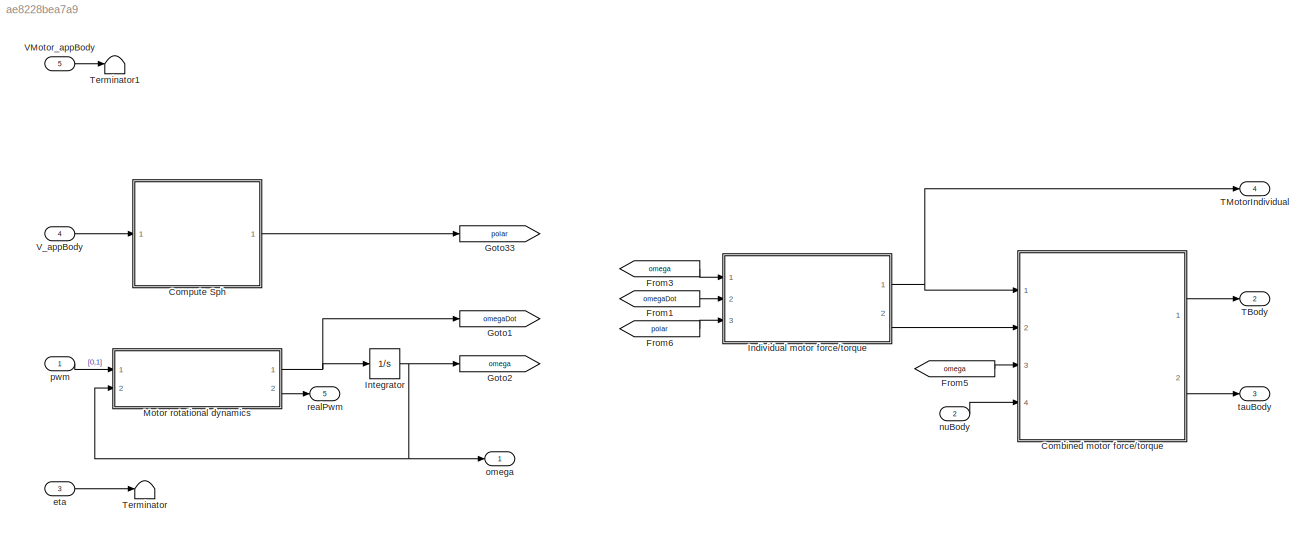
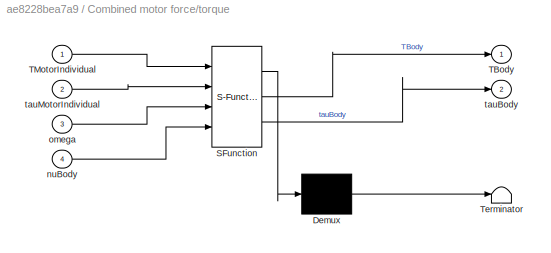
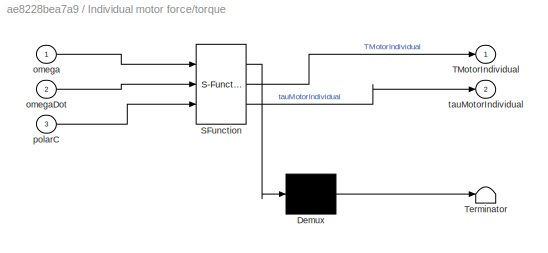
MODEL slx_ae8228bea7a9
KIND model
CONFIG AbsTol = auto
CONFIG EnableMultiTasking = on
CONFIG FixedStep = auto
CONFIG MaxStep = auto
CONFIG MinStep = auto
CONFIG RelTol = 1e-3
CONFIG SampleTimeConstraint = Unconstrained
CONFIG SolverName = VariableStepAuto
CONFIG StartTime = 0.0
CONFIG StopTime = 10.0
BLOCK [SubSystem] Combined motor force//torque
  ErrorFcn = Stateflow.Translate.translate
  PermitHierarchicalResolution = ExplicitOnly
  Ports = [4, 2]
  RequestExecContextInheritance = off
  SFBlockType = MATLAB Function
  TreatAsAtomicUnit = on
BLOCK [Demux] Combined motor force//torque/ Demux 
  Outputs = 1
  Ports = [1, 1]
BLOCK [S-Function] Combined motor force//torque/ SFunction 
  EnableBusSupport = on
  FunctionName = sf_sfun
  Parameters = Motor,Uav
  PortCounts = [4 3]
  Ports = [4, 3]
  SFcnIsStateOwnerBlock = off
  SFunctionDeploymentMode = off
  Tag = Stateflow S-Function 18
BLOCK [Terminator] Combined motor force//torque/ Terminator 
BLOCK [Outport] Combined motor force//torque/TBody
  VectorParamsAs1DForOutWhenUnconnected = off
BLOCK [Inport] Combined motor force//torque/TMotorIndividual
BLOCK [Inport] Combined motor force//torque/nuBody
  Port = 4
BLOCK [Inport] Combined motor force//torque/omega
  Port = 3
BLOCK [Outport] Combined motor force//torque/tauBody
  Port = 2
  VectorParamsAs1DForOutWhenUnconnected = off
BLOCK [Inport] Combined motor force//torque/tauMotorIndividual
  Port = 2
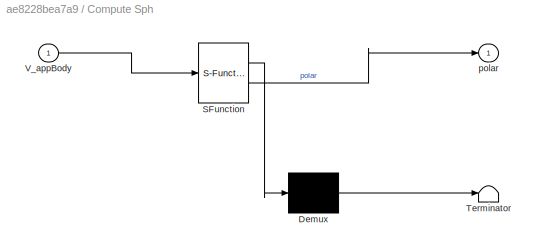
BLOCK [SubSystem] Compute Sph
  ErrorFcn = Stateflow.Translate.translate
  PermitHierarchicalResolution = ExplicitOnly
  Ports = [1, 1]
  RequestExecContextInheritance = off
  SFBlockType = MATLAB Function
  TreatAsAtomicUnit = on
BLOCK [Demux] Compute Sph/ Demux 
  Outputs = 1
  Ports = [1, 1]
BLOCK [S-Function] Compute Sph/ SFunction 
  EnableBusSupport = on
  FunctionName = sf_sfun
  PortCounts = [1 2]
  Ports = [1, 2]
  SFcnIsStateOwnerBlock = off
  SFunctionDeploymentMode = off
  Tag = Stateflow S-Function 1
BLOCK [Terminator] Compute Sph/ Terminator 
BLOCK [Inport] Compute Sph/V_appBody
BLOCK [Outport] Compute Sph/polar
  VectorParamsAs1DForOutWhenUnconnected = off
BLOCK [From] From1
  GotoTag = omegaDot
BLOCK [From] From3
  GotoTag = omega
BLOCK [From] From5
  GotoTag = omega
BLOCK [From] From6
  GotoTag = polar
BLOCK [Goto] Goto1
  GotoTag = omegaDot
BLOCK [Goto] Goto2
  GotoTag = omega
BLOCK [Goto] Goto33
  GotoTag = polar
BLOCK [SubSystem] Individual motor force//torque
  ErrorFcn = Stateflow.Translate.translate
  PermitHierarchicalResolution = ExplicitOnly
  Ports = [3, 2]
  RequestExecContextInheritance = off
  SFBlockType = MATLAB Function
  TreatAsAtomicUnit = on
BLOCK [Demux] Individual motor force//torque/ Demux 
  Outputs = 1
  Ports = [1, 1]
BLOCK [S-Function] Individual motor force//torque/ SFunction 
  EnableBusSupport = on
  FunctionName = sf_sfun
  Parameters = Aero,Motor,Uav
  PortCounts = [3 3]
  Ports = [3, 3]
  SFcnIsStateOwnerBlock = off
  SFunctionDeploymentMode = off
  Tag = Stateflow S-Function 4
BLOCK [Terminator] Individual motor force//torque/ Terminator 
BLOCK [Outport] Individual motor force//torque/TMotorIndividual
  VectorParamsAs1DForOutWhenUnconnected = off
BLOCK [Inport] Individual motor force//torque/omega
BLOCK [Inport] Individual motor force//torque/omegaDot
  Port = 2
BLOCK [Inport] Individual motor force//torque/polarC
  Port = 3
BLOCK [Outport] Individual motor force//torque/tauMotorIndividual
  Port = 2
  VectorParamsAs1DForOutWhenUnconnected = off
BLOCK [Integrator] Integrator
  InitialCondition = Initial.OMEGA
  Ports = [1, 1]
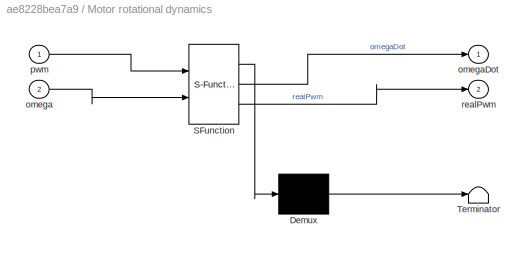
BLOCK [SubSystem] Motor rotational dynamics
  ErrorFcn = Stateflow.Translate.translate
  PermitHierarchicalResolution = ExplicitOnly
  Ports = [2, 2]
  RequestExecContextInheritance = off
  SFBlockType = MATLAB Function
  TreatAsAtomicUnit = on
BLOCK [Demux] Motor rotational dynamics/ Demux 
  Outputs = 1
  Ports = [1, 1]
BLOCK [S-Function] Motor rotational dynamics/ SFunction 
  EnableBusSupport = on
  FunctionName = sf_sfun
  PortCounts = [2 3]
  Ports = [2, 3]
  SFcnIsStateOwnerBlock = off
  SFunctionDeploymentMode = off
  Tag = Stateflow S-Function 5
BLOCK [Terminator] Motor rotational dynamics/ Terminator 
BLOCK [Inport] Motor rotational dynamics/omega
  Port = 2
BLOCK [Outport] Motor rotational dynamics/omegaDot
  VectorParamsAs1DForOutWhenUnconnected = off
BLOCK [Inport] Motor rotational dynamics/pwm
BLOCK [Outport] Motor rotational dynamics/realPwm
  Port = 2
  VectorParamsAs1DForOutWhenUnconnected = off
BLOCK [Outport] TBody
  Port = 2
  Unit = N
  VectorParamsAs1DForOutWhenUnconnected = off
BLOCK [Outport] TMotorIndividual
  Port = 4
  Unit = N
  VectorParamsAs1DForOutWhenUnconnected = off
BLOCK [Terminator] Terminator
BLOCK [Terminator] Terminator1
BLOCK [Inport] VMotor_appBody
  Port = 5
  PortDimensions = [3,4]
  Unit = m/s
BLOCK [Inport] V_appBody
  Port = 4
  PortDimensions = 3
  Unit = m/s
BLOCK [Inport] eta
  Port = 3
  PortDimensions = 3
  Unit = rad
BLOCK [Inport] nuBody
  Port = 2
  PortDimensions = 3
  Unit = rad/s
BLOCK [Outport] omega
  Unit = rad/s
  VectorParamsAs1DForOutWhenUnconnected = off
BLOCK [Inport] pwm
  PortDimensions = Uav.N_ROTORS
BLOCK [Outport] realPwm
  Port = 5
  VectorParamsAs1DForOutWhenUnconnected = off
BLOCK [Outport] tauBody
  Port = 3
  Unit = N*m
  VectorParamsAs1DForOutWhenUnconnected = off
LINE Combined motor force//torque:1 -> TBody:1
LINE Combined motor force//torque:2 -> tauBody:1
LINE Compute Sph:1 -> Goto33:1
LINE From1:1 -> Individual motor force//torque:2
LINE From3:1 -> Individual motor force//torque:1
LINE From5:1 -> Combined motor force//torque:3
LINE From6:1 -> Individual motor force//torque:3
NET Individual motor force//torque:1 -> Combined motor force//torque:1, TMotorIndividual:1
LINE Individual motor force//torque:2 -> Combined motor force//torque:2
NET Integrator:1 -> Goto2:1, Motor rotational dynamics:2, omega:1
NET Motor rotational dynamics:1 -> Goto1:1, Integrator:1
LINE Motor rotational dynamics:2 -> realPwm:1
LINE VMotor_appBody:1 -> Terminator1:1
LINE V_appBody:1 -> Compute Sph:1
LINE eta:1 -> Terminator:1
LINE nuBody:1 -> Combined motor force//torque:4
LINE pwm:1 -> Motor rotational dynamics:1
note: NET lines group one-source signal fan-out (src -> all destinations, sorted); 1:1 wires keep LINE
CHART Compute Sph states=1 transitions=1
  STATE_LABEL 'eML_blk_kernel()'
  STATE_LABEL 'SCRIPT:\nfunction polar  = computeSph(V_appBody)\n%#codegen\n\n% Convert from polar to spherical coordinates\n\nmargin = 0.01;\n\n% if ( ( V_appBody(1) < margin ) && ( V_appBody(3) < margin ) )\n%     radius = sqrt( sum( V_appBody.^2 ) );\n%     azimuth = 0;\n%     elevation = 0;\n% else\n    [ azimuth, elevation, radius ] = cart2sph( V_appBody(1), V_appBody(2), V_appBody(3) );\n% end\n\n\n\npolar = [azimuth; eleva...<+14ch>'
CHART Individual motor force//torque states=1 transitions=1
  STATE_LABEL 'eML_blk_kernel()'
  STATE_LABEL 'SCRIPT:\nfunction [TMotorIndividual, tauMotorIndividual] = motorIndividual( ...\n    omega, omegaDot, polarC, Motor, Uav, Aero)\n%#codegen\n\nalpha = polarC(2);\nbeta = polarC(1); % pi+\nU = polarC(3);\n\n% Make assertions to avoid code generation errors\n% assert(Uav.N_ROTORS < 16);\nUav.N_ROTORS = 4;\n\n% Output\nTMotorIndividual   = zeros(3, Uav.N_ROTORS);\ntauMotorIndividual = zeros(3, Uav.N_ROTORS);\n\n%% Thr...<+1646ch>'
CHART Motor rotational dynamics states=1 transitions=1
  STATE_LABEL 'eML_blk_kernel()'
  STATE_LABEL 'SCRIPT:\nfunction [omegaDot, realPwm]  = motorRotDynamics( pwm, omega)\n%#codegen\n\nrealPwm = (1000 * pwm + 1000);\n% realPwm(2) = realPwm(2) - 200;\n% realPwm(4) = realPwm(4) - 200;\n\n% realPwm( realPwm < 1230 ) = 1230;\n\nrotorTimeConst = 7.006512e-02;\nomegaRef = zeros(4,1);\n% omegaRef([1 3]) = 0.84*sqrt(0.69)*(7.969173e-1 .* realPwm([1 3]) - 6.528579e2);\n% omegaRef([2 4]) = 0.84*sqrt(1.31)*(7.969173e-1...<+138ch>'
CHART Combined motor force//torque states=1 transitions=1
  STATE_LABEL 'eML_blk_kernel()'
  STATE_LABEL 'SCRIPT:\nfunction [TBody, tauBody] = motorCombined( TMotorIndividual,tauMotorIndividual,  ...\n    omega, nuBody, Motor, Uav)\n%#codegen\nassert(Uav.N_ROTORS < 16);\n\n% Initialise matrices to store motor force/torque vectors in body frame\nTBodyIndividual   = zeros(3, Uav.N_ROTORS);\ntauBodyIndividual = zeros(3, Uav.N_ROTORS);\n\n% Calculate forces and moments from each motor in the body frame\nfor i = 1:Ua...<+1287ch>'
CHART  states=0 transitions=0
CHART  states=0 transitions=0
CHART  states=0 transitions=0
CHART  states=0 transitions=0
